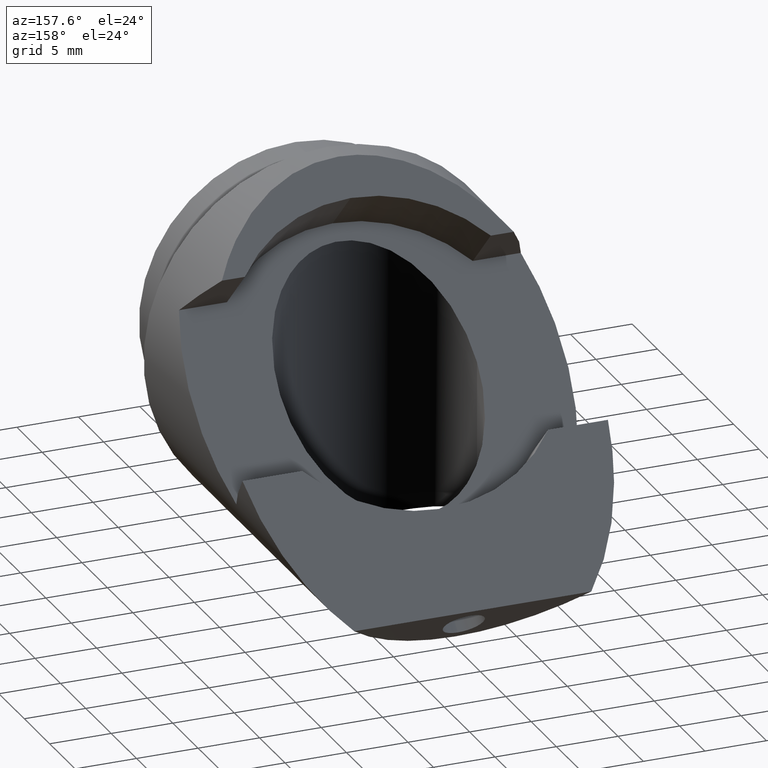
[diagram: clean part render]
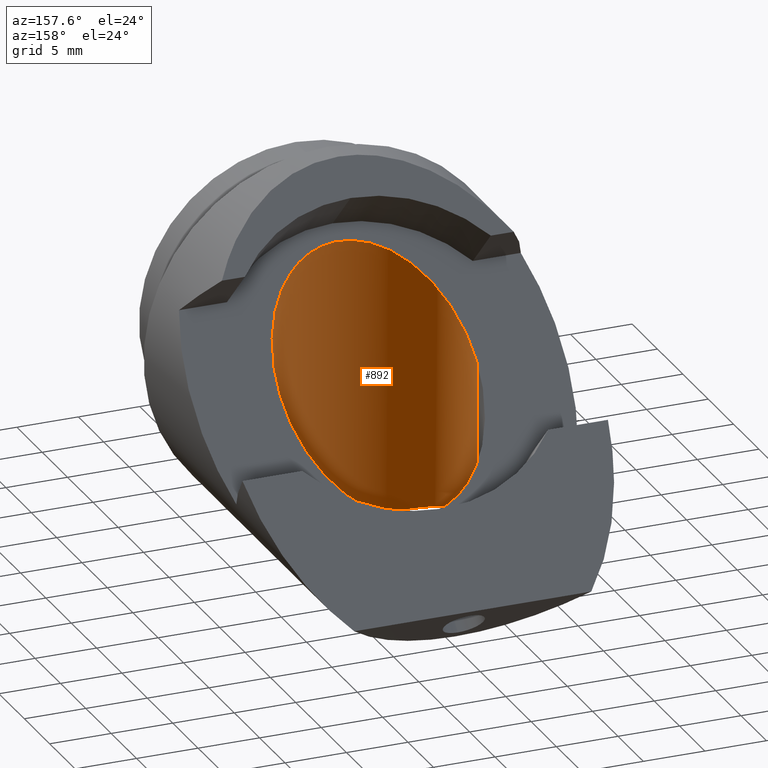
[diagram: same view with one face highlighted and labeled with its STEP entity id]
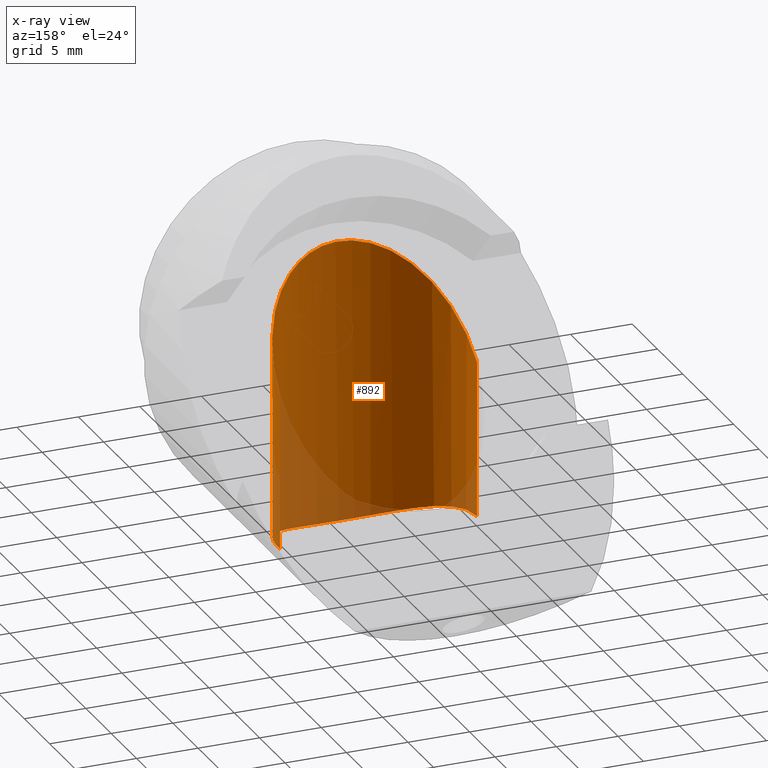
[diagram: x-ray of the same camera — body ghosted, the highlighted face saturated]
A machine part, auxiliary view. The second image highlights one B-rep face of the part: STEP entity #892.
The next image is the same camera in x-ray: the body ghosted, the highlighted face saturated — about 13% of this face is hidden behind the body in this view.
In plain terms, the highlighted cylindrical surface (partial cylindrical patch) has radius 8 mm, axis along (-0, -0, 1).
Its self-contained STEP definition (entity closure, byte-faithful):
#42 = CARTESIAN_POINT ( 'NONE',  ( 6.031435099996727400, 4.648370755528155500, -13.73951351929867400 ) ) ;
#45 = CARTESIAN_POINT ( 'NONE',  ( 8.000000000000108400, 9.397862121657148300, -12.68857754044945500 ) ) ;
#53 = CARTESIAN_POINT ( 'NONE',  ( -8.000000000000104800, 9.928932188134222500, 15.22385620915026500 ) ) ;
#63 = CARTESIAN_POINT ( 'NONE',  ( -3.576409944130032800, 2.753947597043895400, -14.57566637414122600 ) ) ;
#98 = CYLINDRICAL_SURFACE ( 'NONE', #260, 8.000000000000104800 ) ;
#114 = CARTESIAN_POINT ( 'NONE',  ( 2.862778570636199700, 2.454023395342202400, -14.72638444127527700 ) ) ;
#125 = CARTESIAN_POINT ( 'NONE',  ( 2.613348245178229100, 2.363216164021895200, -14.77279957164266100 ) ) ;
#140 = CARTESIAN_POINT ( 'NONE',  ( -1.843974823227151300, 2.139791552717057700, -14.88854263611860200 ) ) ;
#144 = CARTESIAN_POINT ( 'NONE',  ( -7.986389873771929400, 9.391158058453209300, -12.69718802926070500 ) ) ;
#163 = VERTEX_POINT ( 'NONE', #649 ) ;
#184 = CARTESIAN_POINT ( 'NONE',  ( 6.923251542663694900, 5.912021662742544600, -13.30743652911257900 ) ) ;
#204 = CARTESIAN_POINT ( 'NONE',  ( -6.492218660363217700, 5.247279350077104900, -13.52320181177037400 ) ) ;
#208 = CARTESIAN_POINT ( 'NONE',  ( -7.932593759793550500, 8.858614257552190500, -12.73086655763748500 ) ) ;
#216 = CARTESIAN_POINT ( 'NONE',  ( -7.892611762494417400, 8.596062843617303900, -12.75580203211171000 ) ) ;
#254 = CARTESIAN_POINT ( 'NONE',  ( 7.947652023449896000, 8.869674906142993400, -12.72204117017705700 ) ) ;
#259 = CARTESIAN_POINT ( 'NONE',  ( 0.5354399636913802500, 1.942345305199992800, -14.99283321040804200 ) ) ;
#260 = AXIS2_PLACEMENT_3D ( 'NONE', #563, #315, #791 ) ;
#261 = CARTESIAN_POINT ( 'NONE',  ( -8.000000000000110100, -6.071067811865983500, 16.00000000000067100 ) ) ;
#277 = B_SPLINE_CURVE_WITH_KNOTS ( 'NONE', 3,
 ( #737, #333, #259, #895, #812, #345, #579, #125, #114, #666, #418, #414, #886, #42, #969, #654, #184, #750, #572, #959, #505, #254, #45, #810 ),
 .UNSPECIFIED., .F., .F.,
 ( 4, 2, 2, 2, 2, 2, 2, 2, 2, 2, 2, 4 ),
 ( 0.02551642818258203000, 0.02631280244010038300, 0.02710917669761873900, 0.02790555095513709200, 0.02870192521265544800, 0.03029467372769215400, 0.03188742224272886300, 0.03348017075776556900, 0.03427654501528391900, 0.03507291927280227500, 0.03666566778783897400, 0.03825841630287567200 ),
 .UNSPECIFIED. ) ;
#278 = CARTESIAN_POINT ( 'NONE',  ( -6.925117495538727600, 5.890386237769818400, -13.30963219538147000 ) ) ;
#280 = CARTESIAN_POINT ( 'NONE',  ( 8.000000000000104800, 9.928932188134220700, -12.68857754044945500 ) ) ;
#293 = CARTESIAN_POINT ( 'NONE',  ( -7.722212791776017900, 7.822507221936043600, -12.85984451120371100 ) ) ;
#302 = VECTOR ( 'NONE', #433, 1000.000000000000000 ) ;
#312 = ORIENTED_EDGE ( 'NONE', *, *, #907, .F. ) ;
#315 = DIRECTION ( 'NONE',  ( -0.0000000000000000000, -0.0000000000000000000, 1.000000000000000000 ) ) ;
#324 = CARTESIAN_POINT ( 'NONE',  ( 8.000000000000104800, 9.928932188134220700, 15.22385620915026500 ) ) ;
#333 = CARTESIAN_POINT ( 'NONE',  ( 0.2663809960376444800, 1.928932188134117500, -15.00000000000000400 ) ) ;
#334 = ORIENTED_EDGE ( 'NONE', *, *, #602, .T. ) ;
#342 = VECTOR ( 'NONE', #634, 1000.000000000000000 ) ;
#345 = CARTESIAN_POINT ( 'NONE',  ( 1.853177701069957900, 2.142023572886144800, -14.88737484036426100 ) ) ;
#349 = EDGE_CURVE ( 'NONE', #372, #753, #845, .T. ) ;
#372 = VERTEX_POINT ( 'NONE', #683 ) ;
#414 = CARTESIAN_POINT ( 'NONE',  ( 4.906127240118980400, 3.588799818758777100, -14.18208317508983300 ) ) ;
#418 = CARTESIAN_POINT ( 'NONE',  ( 4.049140723086007500, 3.009985565845082300, -14.45012204398461900 ) ) ;
#433 = DIRECTION ( 'NONE',  ( -0.0000000000000000000, -0.0000000000000000000, 1.000000000000000000 ) ) ;
#434 = CARTESIAN_POINT ( 'NONE',  ( -7.566662152314264300, 7.318334476416273700, -12.95198035539508700 ) ) ;
#439 = CARTESIAN_POINT ( 'NONE',  ( -5.836924079388349000, 4.452095560247782300, -13.81913387922050200 ) ) ;
#447 = CARTESIAN_POINT ( 'NONE',  ( -0.5330492255742383900, 1.928932188134117900, -15.00000000000000700 ) ) ;
#449 = CARTESIAN_POINT ( 'NONE',  ( -2.856254063075164900, 2.451660578791558200, -14.72759322876118800 ) ) ;
#459 = VERTEX_POINT ( 'NONE', #463 ) ;
#463 = CARTESIAN_POINT ( 'NONE',  ( 8.000000000000104800, 9.928932188134220700, 1.249000902703301100E-013 ) ) ;
#479 = EDGE_LOOP ( 'NONE', ( #784, #334, #734, #312, #703 ) ) ;
#486 = EDGE_CURVE ( 'NONE', #163, #459, #777, .T. ) ;
#505 = CARTESIAN_POINT ( 'NONE',  ( 7.735358406961998100, 7.819091200964576800, -12.85222683185173200 ) ) ;
#526 = CARTESIAN_POINT ( 'NONE',  ( -7.787422227111571600, 8.078009126603351600, -12.82029098626778900 ) ) ;
#529 = CARTESIAN_POINT ( 'NONE',  ( -1.060651640871473000, 1.981678697479633700, -14.97166650715893400 ) ) ;
#563 = CARTESIAN_POINT ( 'NONE',  ( 0.0000000000000000000, 9.928932188134220700, 15.22385620915026500 ) ) ;
#572 = CARTESIAN_POINT ( 'NONE',  ( 7.279670626786716200, 6.601246184058548600, -13.11562395864500800 ) ) ;
#579 = CARTESIAN_POINT ( 'NONE',  ( 2.109043792591567300, 2.207430890522653400, -14.85318587089761300 ) ) ;
#602 = EDGE_CURVE ( 'NONE', #372, #163, #925, .T. ) ;
#607 = CARTESIAN_POINT ( 'NONE',  ( -2.104764605822110600, 2.206246456508055100, -14.85380156965941500 ) ) ;
#611 = CARTESIAN_POINT ( 'NONE',  ( -2.763774181441814900E-024, 1.928932188134118200, -15.00000000000000000 ) ) ;
#618 = CARTESIAN_POINT ( 'NONE',  ( -6.009205169887722200, 4.641618903441958800, -13.74487954241180900 ) ) ;
#619 = CARTESIAN_POINT ( 'NONE',  ( -2.763774181441814900E-024, 1.928932188134118200, -15.00000000000000000 ) ) ;
#621 = CARTESIAN_POINT ( 'NONE',  ( -4.032228139331059500, 2.999812001776865700, -14.45497494079410000 ) ) ;
#634 = DIRECTION ( 'NONE',  ( -0.0000000000000000000, -0.0000000000000000000, 1.000000000000000000 ) ) ;
#637 = VERTEX_POINT ( 'NONE', #280 ) ;
#641 = LINE ( 'NONE', #324, #342 ) ;
#649 = CARTESIAN_POINT ( 'NONE',  ( -8.000000000000104800, 9.928932188134222500, 1.231653667943533000E-013 ) ) ;
#654 = CARTESIAN_POINT ( 'NONE',  ( 6.788536056567907400, 5.688324930271245500, -13.37690633020036300 ) ) ;
#666 = CARTESIAN_POINT ( 'NONE',  ( 3.592990458993716700, 2.761682368169339400, -14.57182277508525000 ) ) ;
#683 = CARTESIAN_POINT ( 'NONE',  ( -8.000000000000104800, 9.928932188134222500, -12.68857754044945300 ) ) ;
#703 = ORIENTED_EDGE ( 'NONE', *, *, #981, .F. ) ;
#734 = ORIENTED_EDGE ( 'NONE', *, *, #486, .T. ) ;
#737 = CARTESIAN_POINT ( 'NONE',  ( -2.763774181441814900E-024, 1.928932188134118200, -15.00000000000000000 ) ) ;
#750 = CARTESIAN_POINT ( 'NONE',  ( 7.168406417719343600, 6.367902628807623700, -13.17699618007666900 ) ) ;
#753 = VERTEX_POINT ( 'NONE', #619 ) ;
#765 = CARTESIAN_POINT ( 'NONE',  ( -2.610089792680260000, 2.362074172449627700, -14.77338439190168100 ) ) ;
#767 = CARTESIAN_POINT ( 'NONE',  ( -5.294259466463342000, 3.909587927322553600, -14.04006382546804600 ) ) ;
#777 =( BOUNDED_CURVE ( )  B_SPLINE_CURVE ( 3, ( #964, #261, #807, #887 ),
 .UNSPECIFIED., .F., .T. ) 
 B_SPLINE_CURVE_WITH_KNOTS ( ( 4, 4 ),
 ( 4.712388980384689700, 7.853981633974482800 ),
 .UNSPECIFIED. ) 
 CURVE ( )  GEOMETRIC_REPRESENTATION_ITEM ( )  RATIONAL_B_SPLINE_CURVE ( ( 1.000000000000000000, 0.3333333333333333700, 0.3333333333333333700, 1.000000000000000000 ) ) 
 REPRESENTATION_ITEM ( '' )  );
#784 = ORIENTED_EDGE ( 'NONE', *, *, #349, .F. ) ;
#791 = DIRECTION ( 'NONE',  ( 1.000000000000000000, 0.0000000000000000000, 0.0000000000000000000 ) ) ;
#807 = CARTESIAN_POINT ( 'NONE',  ( 8.000000000000104800, -6.071067811865983500, 16.00000000000067100 ) ) ;
#810 = CARTESIAN_POINT ( 'NONE',  ( 8.000000000000104800, 9.928932188134220700, -12.68857754044945500 ) ) ;
#812 = CARTESIAN_POINT ( 'NONE',  ( 1.333841282881538200, 2.036462308175945400, -14.94285998935058600 ) ) ;
#843 = CARTESIAN_POINT ( 'NONE',  ( -6.336600760920594800, 5.038766614149111000, -13.59704935660367800 ) ) ;
#845 = B_SPLINE_CURVE_WITH_KNOTS ( 'NONE', 3,
 ( #992, #921, #144, #208, #216, #526, #293, #434, #906, #1004, #278, #204, #843, #618, #439, #767, #994, #621, #63, #449, #765, #607, #140, #529, #447, #611 ),
 .UNSPECIFIED., .F., .F.,
 ( 4, 2, 2, 2, 2, 2, 2, 2, 2, 2, 2, 2, 4 ),
 ( 0.01276757034206472600, 0.01356437395709705500, 0.01436117757212938700, 0.01515798118716171600, 0.01595478480219404700, 0.01754839203225871300, 0.01834519564729104500, 0.01914199926232337500, 0.02073560649238803700, 0.02232921372245270200, 0.02312601733748503200, 0.02392282095251736400, 0.02551642818258203000 ),
 .UNSPECIFIED. ) ;
#865 = FACE_OUTER_BOUND ( 'NONE', #479, .T. ) ;
#886 = CARTESIAN_POINT ( 'NONE',  ( 5.308496711202797900, 3.922069356659853700, -14.03468217593874800 ) ) ;
#887 = CARTESIAN_POINT ( 'NONE',  ( 8.000000000000104800, 9.928932188134220700, 1.249000902703301100E-013 ) ) ;
#892 = ADVANCED_FACE ( 'NONE', ( #865 ), #98, .F. ) ;
#895 = CARTESIAN_POINT ( 'NONE',  ( 1.070372010973882100, 1.996305274463149500, -14.96415875978184900 ) ) ;
#906 = CARTESIAN_POINT ( 'NONE',  ( -7.475805299697055000, 7.068707276263065600, -13.00484229207788900 ) ) ;
#907 = EDGE_CURVE ( 'NONE', #637, #459, #641, .T. ) ;
#921 = CARTESIAN_POINT ( 'NONE',  ( -8.000000000000103000, 9.661999923300925300, -12.68857754044945800 ) ) ;
#925 = LINE ( 'NONE', #53, #302 ) ;
#959 = CARTESIAN_POINT ( 'NONE',  ( 7.579703556686396800, 7.318091653432770900, -12.94607581582513600 ) ) ;
#964 = CARTESIAN_POINT ( 'NONE',  ( -8.000000000000104800, 9.928932188134222500, 1.231653667943533000E-013 ) ) ;
#969 = CARTESIAN_POINT ( 'NONE',  ( 6.356143963390639600, 5.043512989774846700, -13.59054130451619200 ) ) ;
#981 = EDGE_CURVE ( 'NONE', #753, #637, #277, .T. ) ;
#992 = CARTESIAN_POINT ( 'NONE',  ( -8.000000000000104800, 9.928932188134222500, -12.68857754044945300 ) ) ;
#994 = CARTESIAN_POINT ( 'NONE',  ( -4.897071439797034700, 3.581471149409963100, -14.18533946087025700 ) ) ;
#1004 = CARTESIAN_POINT ( 'NONE',  ( -7.171281574116763500, 6.344671275952157100, -13.17676258676304000 ) ) ;